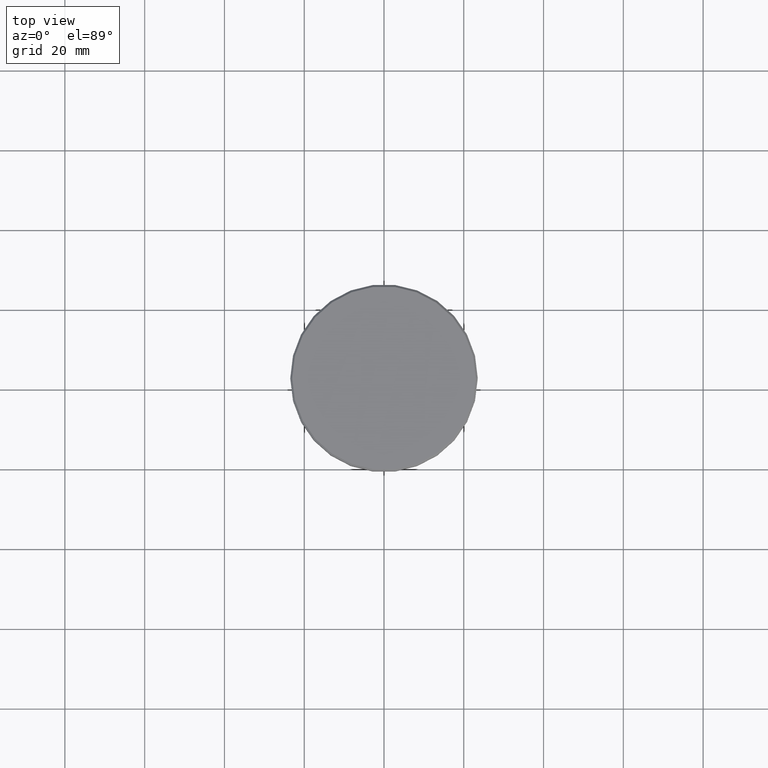
[diagram: clean part render]
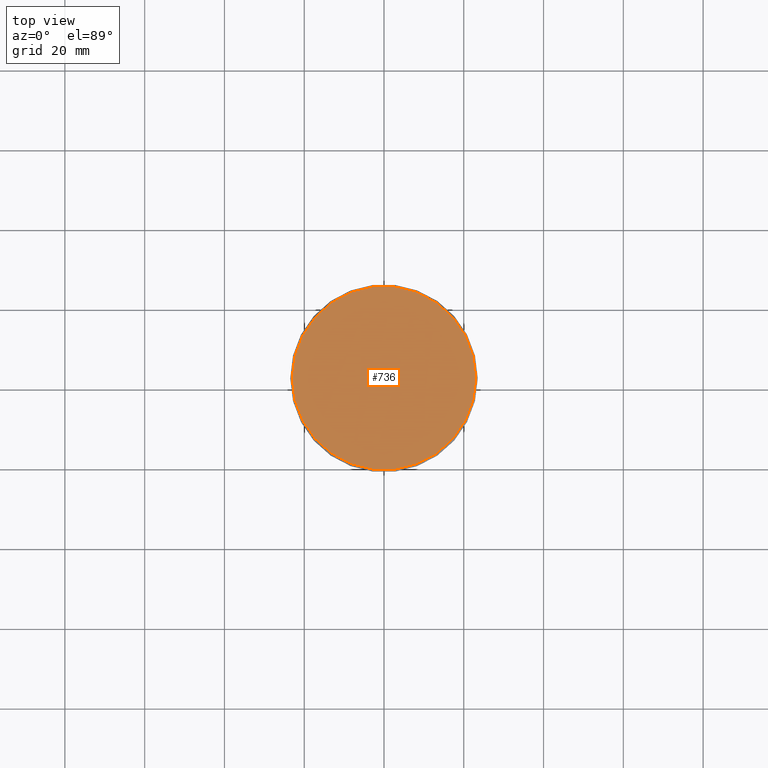
[diagram: same view with one face highlighted and labeled with its STEP entity id]
A machine part, top view. The second image highlights one B-rep face of the part: STEP entity #736.
In plain terms, the highlighted planar face has unit normal (0, -0, 1).
Its self-contained STEP definition (entity closure, byte-faithful):
#20 = EDGE_LOOP ( 'NONE', ( #1052, #578 ) ) ;
#39 = AXIS2_PLACEMENT_3D ( 'NONE', #1064, #697, #142 ) ;
#56 = CIRCLE ( 'NONE', #173, 22.99999999999999645 ) ;
#82 = DIRECTION ( 'NONE',  ( 1.000000000000000000, 0.000000000000000000, 0.000000000000000000 ) ) ;
#142 = DIRECTION ( 'NONE',  ( 1.000000000000000000, 0.000000000000000000, 0.000000000000000000 ) ) ;
#173 = AXIS2_PLACEMENT_3D ( 'NONE', #765, #303, #897 ) ;
#303 = DIRECTION ( 'NONE',  ( -0.000000000000000000, -0.000000000000000000, 1.000000000000000000 ) ) ;
#306 = FACE_OUTER_BOUND ( 'NONE', #20, .T. ) ;
#578 = ORIENTED_EDGE ( 'NONE', *, *, #851, .T. ) ;
#593 = PLANE ( 'NONE',  #39 ) ;
#677 = CARTESIAN_POINT ( 'NONE',  ( -22.99999999999999645, 0.000000000000000000, 0.000000000000000000 ) ) ;
#697 = DIRECTION ( 'NONE',  ( 0.000000000000000000, -0.000000000000000000, 1.000000000000000000 ) ) ;
#736 = ADVANCED_FACE ( 'NONE', ( #306 ), #593, .T. ) ;
#741 = VERTEX_POINT ( 'NONE', #677 ) ;
#765 = CARTESIAN_POINT ( 'NONE',  ( 0.000000000000000000, 0.000000000000000000, 0.000000000000000000 ) ) ;
#812 = CARTESIAN_POINT ( 'NONE',  ( 0.000000000000000000, 0.000000000000000000, 0.000000000000000000 ) ) ;
#851 = EDGE_CURVE ( 'NONE', #853, #741, #56, .T. ) ;
#853 = VERTEX_POINT ( 'NONE', #1003 ) ;
#883 = AXIS2_PLACEMENT_3D ( 'NONE', #812, #910, #82 ) ;
#886 = EDGE_CURVE ( 'NONE', #741, #853, #926, .T. ) ;
#897 = DIRECTION ( 'NONE',  ( 1.000000000000000000, 0.000000000000000000, 0.000000000000000000 ) ) ;
#910 = DIRECTION ( 'NONE',  ( -0.000000000000000000, -0.000000000000000000, 1.000000000000000000 ) ) ;
#926 = CIRCLE ( 'NONE', #883, 22.99999999999999645 ) ;
#1003 = CARTESIAN_POINT ( 'NONE',  ( 22.99999999999999645, 2.847303808017596139E-15, 0.000000000000000000 ) ) ;
#1052 = ORIENTED_EDGE ( 'NONE', *, *, #886, .T. ) ;
#1064 = CARTESIAN_POINT ( 'NONE',  ( 0.000000000000000000, 0.000000000000000000, 0.000000000000000000 ) ) ;